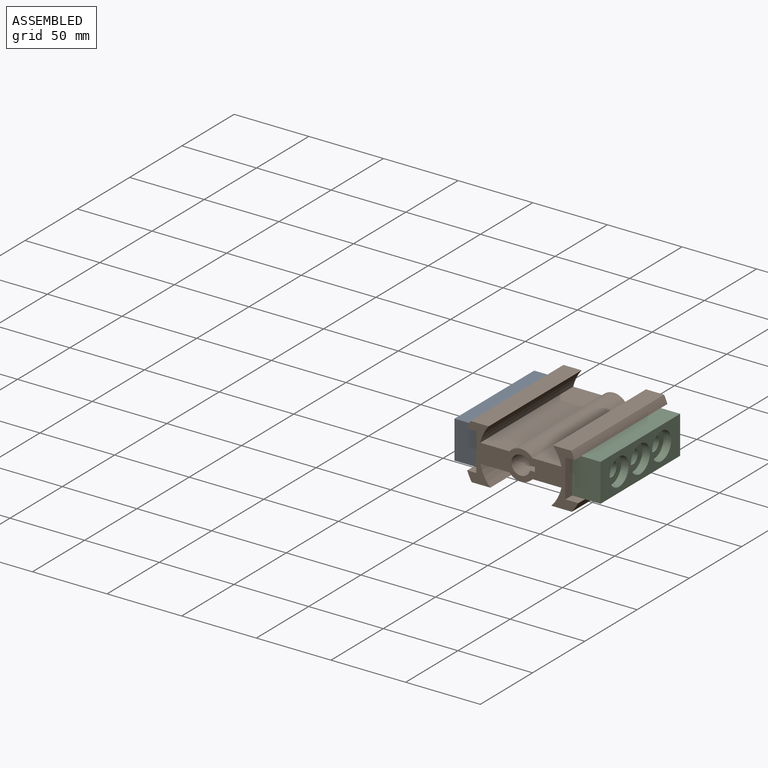
[diagram: assembled view]
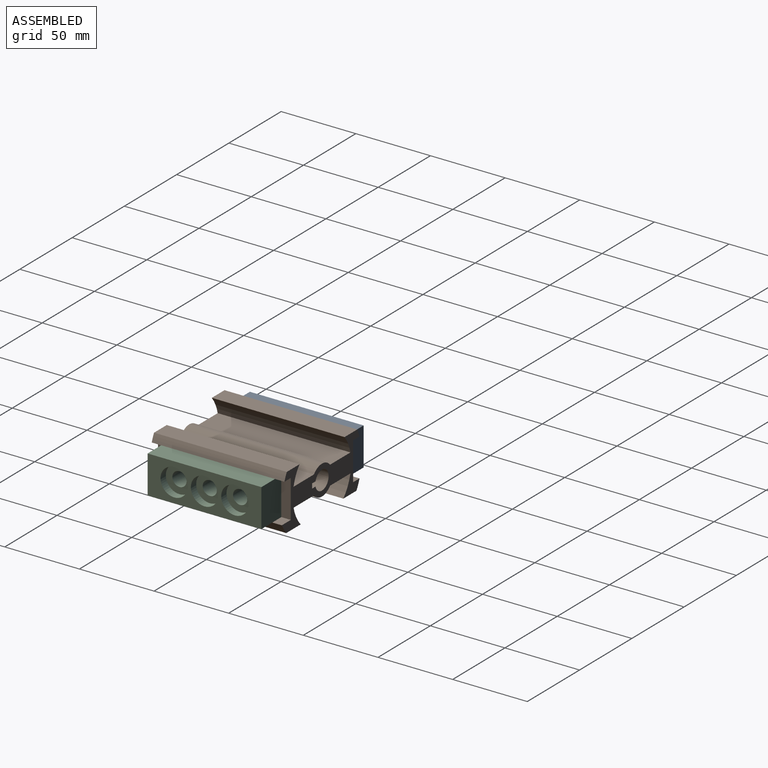
[diagram: assembled view, second angle]
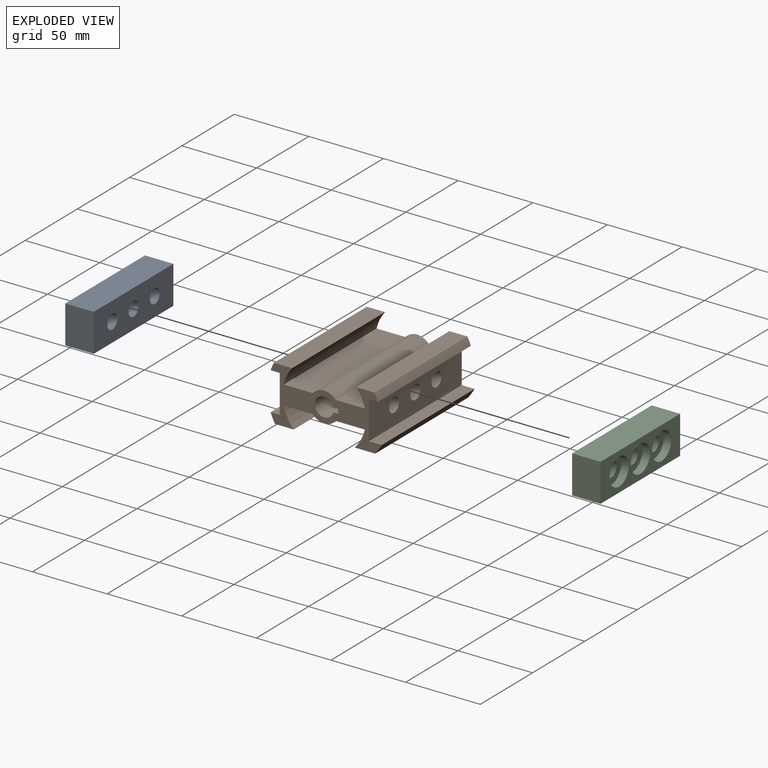
[diagram: exploded view]
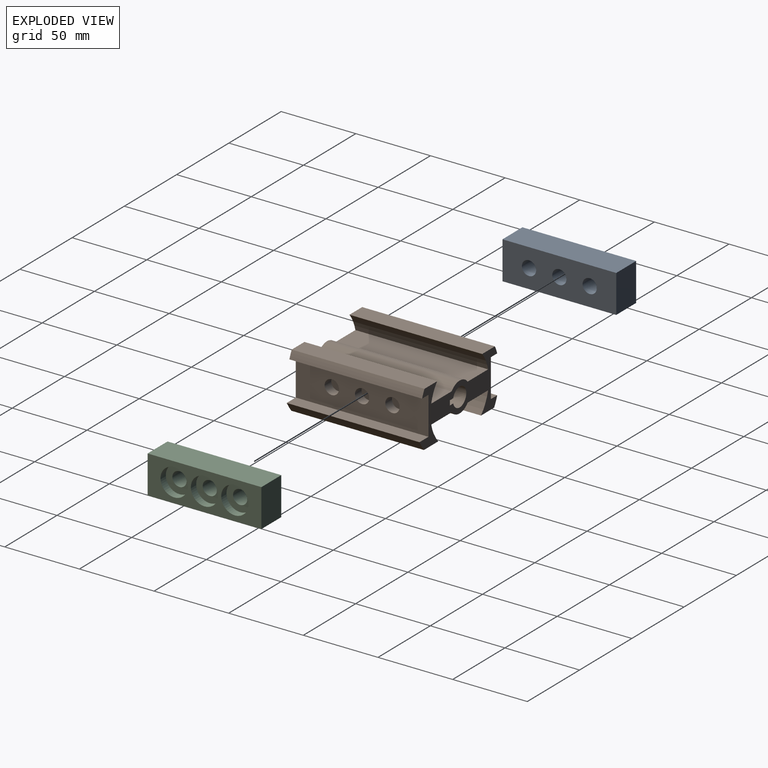
[diagram: exploded view, second angle]
ASSEMBLY  parts=3 mates=2
PART A: 15 faces, bbox 25.4x76.2x19.1 mm
  f0: cylinder r=4.76mm len=13.97mm, axis (0,0,1), area 418mm2, adj f5,f14
  f1: cylinder r=4.76mm len=13.97mm, axis (0,0,1), area 418mm2, adj f5,f12
  f2: cylinder r=4.76mm len=13.97mm, axis (0,0,1), area 418mm2, adj f5,f10
  f3: plane 76.2x25.4mm, normal (0,0,1), area 1147.4mm2, adj f4,f6,f7,f8,f9,f11,f13
  f4: plane 76.2x19.05mm, normal (-1,0,0), area 1451.6mm2, adj f3,f5,f7,f8
  f5: plane 76.2x25.4mm, normal (0,0,-1), area 1721.7mm2, adj f0,f1,f2,f4,f6,f7,f8
  f6: plane 76.2x19.05mm, normal (1,0,0), area 1451.6mm2, adj f3,f5,f7,f8
  f7: plane 25.4x19.05mm, normal (0,1,0), area 483.9mm2, adj f3,f4,f5,f6
  f8: plane 25.4x19.05mm, normal (0,-1,0), area 483.9mm2, adj f3,f4,f5,f6
  f9: cylinder r=9.14mm len=18.29mm, axis (0,0,1), area 291.9mm2, adj f3,f10
  f10: plane 18.29x18.29mm, normal (0,0,1), area 191.4mm2, adj f2,f9
  f11: cylinder r=9.14mm len=18.29mm, axis (0,0,1), area 291.9mm2, adj f3,f12
  f12: plane 18.29x18.29mm, normal (0,0,1), area 191.4mm2, adj f1,f11
  f13: cylinder r=9.14mm len=18.29mm, axis (0,0,1), area 291.9mm2, adj f3,f14
  f14: plane 18.29x18.29mm, normal (0,0,1), area 191.4mm2, adj f0,f13
PART B: 42 faces, bbox 74.4x88.9x36.8 mm
  f0: cylinder r=67.63mm len=88.9mm, axis (0,1,0), area 684.4mm2, adj f2,f3,f30,f40
  f1: cylinder r=38.1mm len=88.9mm, axis (0,1,0), area 622.4mm2, adj f2,f3,f20,f41
  f2: plane 74.41x36.83mm, normal (0,-1,0), area 1069.1mm2, adj f0,f1,f4,f5,f6,f7,f8,f9
  f3: plane 74.41x36.83mm, normal (0,1,0), area 1069.1mm2, adj f0,f1,f4,f5,f6,f7,f8,f9
  f4: cylinder r=27.94mm len=88.9mm, axis (0,1,0), area 1294mm2, adj f2,f3,f17,f41
  f5: cylinder r=27.94mm len=88.9mm, axis (0,1,0), area 1294mm2, adj f2,f3,f11,f40
  f6: cylinder r=27.94mm len=88.9mm, axis (0,1,0), area 1143.8mm2, adj f2,f3,f14,f39
  f7: cylinder r=6.35mm len=88.9mm, axis (0,1,0), area 3261.7mm2, adj f2,f3,f8,f19
  f8: plane 88.9x3.24mm, normal (0,0,-1), area 288.3mm2, adj f2,f3,f7,f9
  f9: plane 88.9x3.18mm, normal (-1,0,0), area 282.3mm2, adj f2,f3,f8,f19
  f10: cylinder r=9.97mm len=88.9mm, axis (0,1,0), area 1561.5mm2, adj f2,f3,f11,f17
  f11: plane 88.9x19.52mm, normal (0,0,-1), area 1735.2mm2, adj f2,f3,f5,f10
  f12: plane 88.9x19.52mm, normal (0,0,1), area 1735.2mm2, adj f2,f3,f13,f18
  f13: cylinder r=9.97mm len=88.9mm, axis (0,1,0), area 1561.5mm2, adj f2,f3,f12,f14
  f14: plane 88.9x19.52mm, normal (0,0,1), area 1735.2mm2, adj f2,f3,f6,f13
  f15: cylinder r=38.1mm len=88.9mm, axis (0,1,0), area 493.4mm2, adj f2,f3,f22,f39
  f16: cylinder r=38.1mm len=88.9mm, axis (0,1,0), area 493.4mm2, adj f2,f3,f31,f38
  f17: plane 88.9x19.52mm, normal (0,0,-1), area 1735.2mm2, adj f2,f3,f4,f10
  f18: cylinder r=27.94mm len=88.9mm, axis (0,1,0), area 1143.8mm2, adj f2,f3,f12,f38
  f19: plane 88.9x3.24mm, normal (0,0,1), area 288.3mm2, adj f2,f3,f7,f9
  f20: plane 88.9x6.08mm, normal (0,0,1), area 540.2mm2, adj f1,f2,f3,f21
  f21: plane 88.9x25.4mm, normal (-1,0,0), area 2044.3mm2, adj f2,f3,f20,f22,f23,f25,f27
  f22: plane 88.9x6.08mm, normal (0,0,-1), area 540.2mm2, adj f2,f3,f15,f21
  f23: cylinder r=4.76mm len=12.7mm, axis (-1,0,0), area 380mm2, adj f21,f24
  f24: plane 9.53x9.53mm, normal (-1,0,0), area 71.3mm2, adj f23
  f25: cylinder r=4.76mm len=12.7mm, axis (-1,0,0), area 380mm2, adj f21,f26
  f26: plane 9.53x9.53mm, normal (-1,0,0), area 71.3mm2, adj f25
  f27: cylinder r=4.76mm len=12.7mm, axis (-1,0,0), area 380mm2, adj f21,f28
  f28: plane 9.53x9.53mm, normal (-1,0,0), area 71.3mm2, adj f27
  f29: plane 88.9x25.4mm, normal (1,0,0), area 2044.3mm2, adj f2,f3,f30,f31,f32,f34,f36
  f30: plane 88.9x8.63mm, normal (0,0,1), area 767.5mm2, adj f0,f2,f3,f29
  f31: plane 88.9x6.07mm, normal (0,0,-1), area 539.7mm2, adj f2,f3,f16,f29
  f32: cylinder r=4.76mm len=9.53mm, axis (1,0,0), area 190mm2, adj f29,f33
  f33: plane 9.53x9.53mm, normal (1,0,0), area 71.3mm2, adj f32
  f34: cylinder r=4.76mm len=9.53mm, axis (1,0,0), area 190mm2, adj f29,f35
  f35: plane 9.53x9.53mm, normal (1,0,0), area 71.3mm2, adj f34
  f36: cylinder r=4.76mm len=9.53mm, axis (1,0,0), area 190mm2, adj f29,f37
  f37: plane 9.53x9.53mm, normal (1,0,0), area 71.3mm2, adj f36
  f38: plane 88.9x12.14mm, normal (0,0,1), area 1079.6mm2, adj f2,f3,f16,f18
  f39: plane 88.9x12.14mm, normal (0,0,1), area 1079.6mm2, adj f2,f3,f6,f15
  f40: plane 88.9x13.7mm, normal (0,0,-1), area 1218mm2, adj f0,f2,f3,f5
  f41: plane 88.9x12.56mm, normal (0,0,-1), area 1116.3mm2, adj f1,f2,f3,f4
PART C: same geometry as A
PLACE A rot(axis=(0.71,0,-0.71),180deg) t=(-23.17,62.47,21.41)mm
PLACE B t=(16.2,68.82,21.41)mm
PLACE C rot(axis=(0,1,0),90deg) t=(55.57,-13.73,21.41)mm
MATE fastened C.f0 <-> B.f32  axis (-1,0,0) through (46.05,24.37,21.41)mm
MATE fastened A.f0 <-> B.f25  axis (-1,0,0) through (-13.65,24.37,21.41)mm
